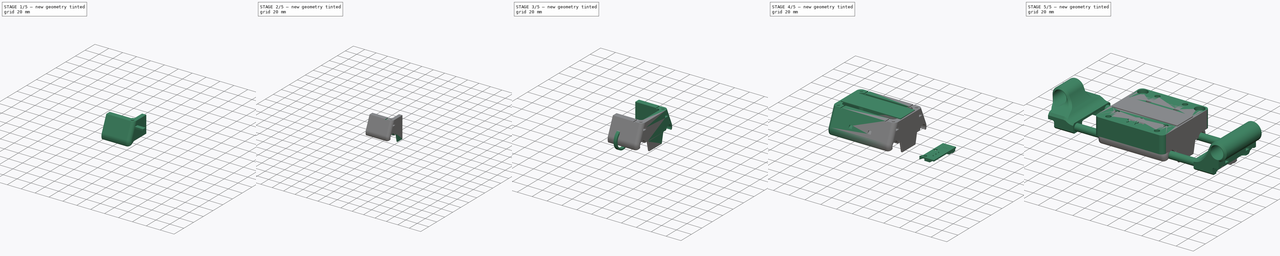
[diagram: build sequence overview — one tinted view per stage of 5, left to right]
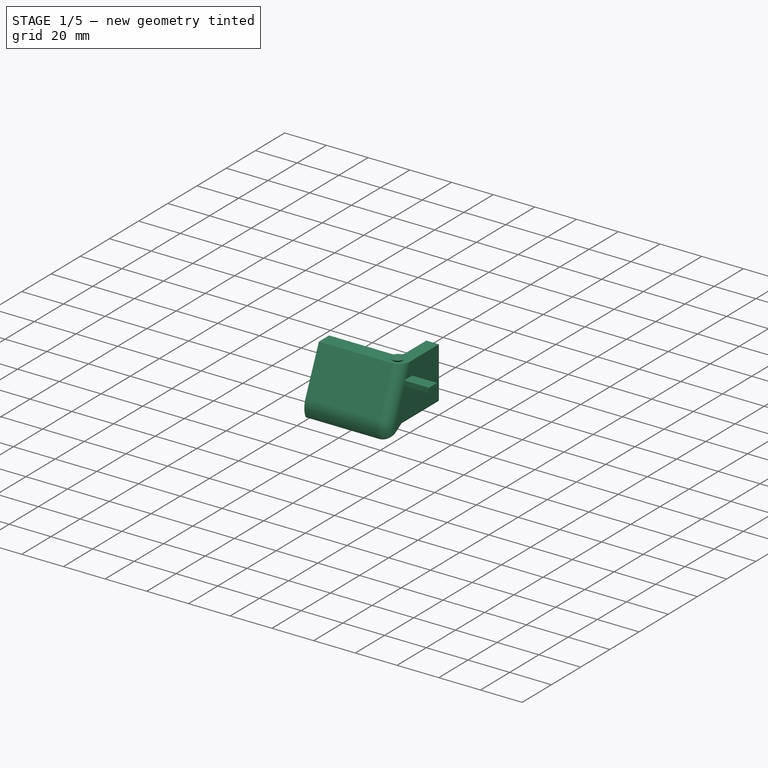
[diagram: stage 1 of 5 — iso view after this stage's code; geometry added in this stage tinted green]
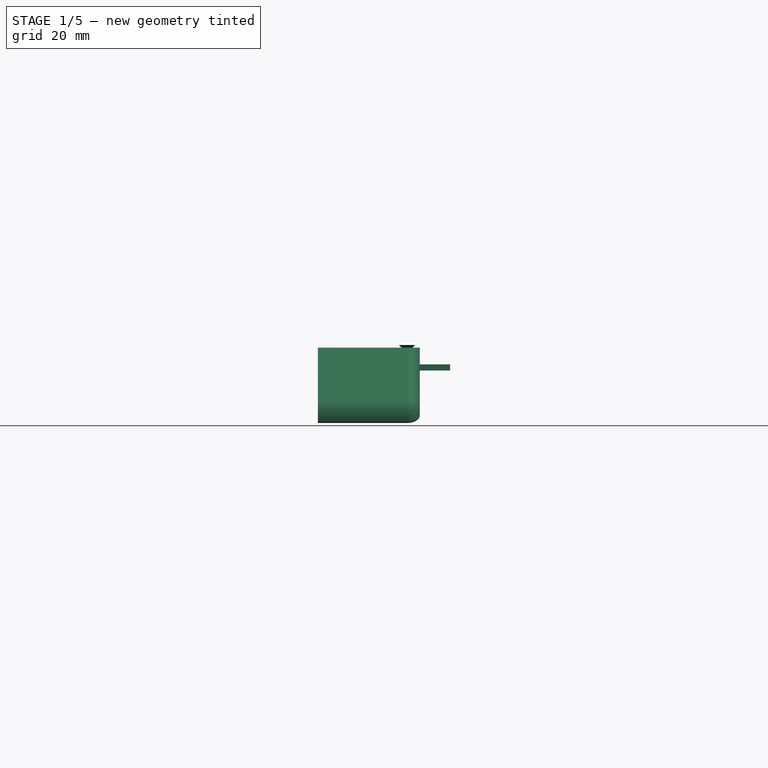
[diagram: stage 1 of 5 — front view after this stage's code; geometry added in this stage tinted green]
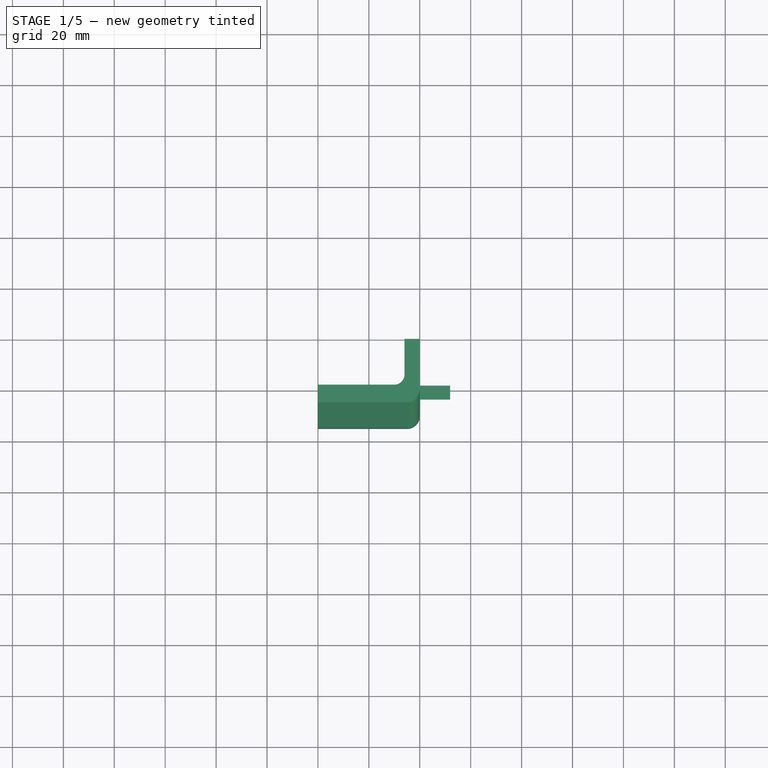
[diagram: stage 1 of 5 — top view after this stage's code; geometry added in this stage tinted green]
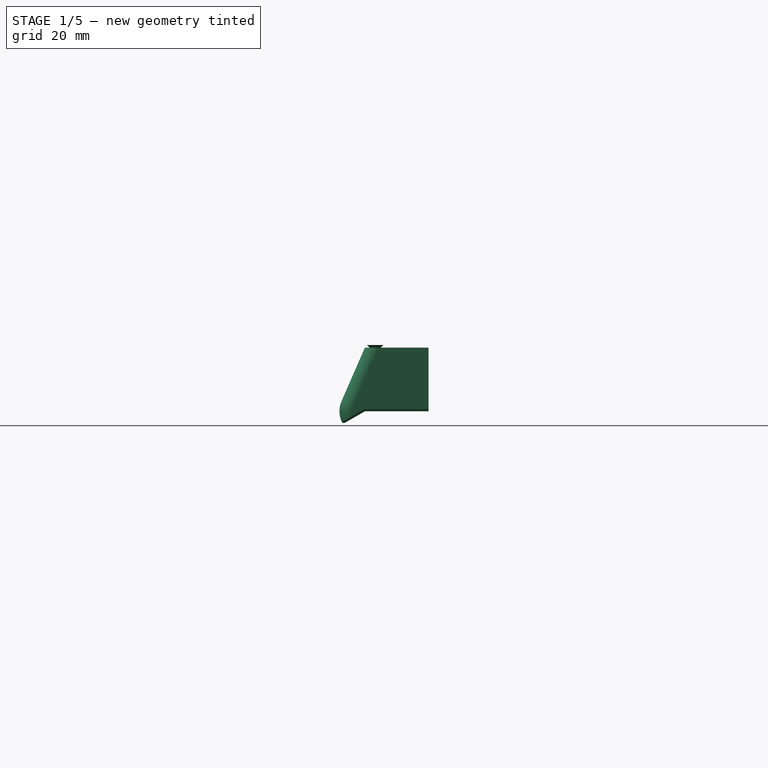
[diagram: stage 1 of 5 — right view after this stage's code; geometry added in this stage tinted green]
FCSTD DOCUMENT  (FreeCAD 0.16R6698 (Git))
Label: Xcarriage
License: All rights reserved
LicenseURL: http://en.wikipedia.org/wiki/All_rights_reserved
objects: Part::FeaturePython×11, Sketcher::SketchObject×10, Part::Fillet×5, PartDesign::Pocket×5, Part::Cut×4, Part::Box×3, Part::MultiFuse×3, PartDesign::Pad×2, PartDesign::Revolution×2, App::DocumentObjectGroup×2, Part::Mirroring×2, Spreadsheet::Sheet×1, Part::Cylinder×1, Part::Offset×1, Part::Compound×1, Part::Feature×1
note: 60 computed .brp shape members not serialized (recipe doc carries the construction recipe); baked Part::Feature solids carry a one-line shape summary decoded from their .brp

FEATURE [Sketcher::SketchObject] Sketch  label="Base"
  Placement = pos=(0,0,0) rot=(0.57735,0.57735,0.57735;2.0944rad)
  sketch-geometry (6):
    g0: LineSegment StartX=0 StartY=0 StartZ=0 EndX=-25 EndY=0 EndZ=0
    g1: LineSegment StartX=-25 StartY=0 StartZ=0 EndX=-34.1651 EndY=-21 EndZ=0
    g2: LineSegment StartX=0 StartY=0 StartZ=0 EndX=0 EndY=-25 EndZ=0
    g3: LineSegment StartX=0 StartY=-25 StartZ=0 EndX=-25 EndY=-25 EndZ=0
    g4: LineSegment StartX=-25 StartY=-25 StartZ=0 EndX=-33.6603 EndY=-30 EndZ=0
    g5: ArcOfCircle CenterX=-25 CenterY=-25 CenterZ=0 NormalX=0 NormalY=0 NormalZ=1 Radius=10 StartAngle=2.73007 EndAngle=3.66519
  constraints (17):
    c: Coincident(g0,g1)
    c: Coincident(g2,g3)
    c: Coincident(g3,g4)
    c: Horizontal(g3)
    c: Horizontal(g0)
    c: Vertical(g2)
    c: Coincident(g2,g-1)
    c: Coincident(g5,g3)
    c: Coincident(g5,g1)
    c: Coincident(g5,g4)
    c: Tangent(g5,g1)
    c: Coincident(g-1,g0)
    c: DistanceX(g3) = -25
    c: DistanceY(g3) = -25
    c: Distance(g4) = 10
    c: DistanceX(g0,g0) = 25
    c: Angle(g4) = -2.61799
FEATURE [PartDesign::Pad] Pad  label="Base001"
  Length = 40
  Length2 = 100
  Placement = pos=(0,0,0) rot=(0.57735,0.57735,0.57735;2.0944rad)
  Sketch = -> Sketch
  Type = 0
FEATURE [Part::Fillet] Fillet
  Base = -> Pad
  Edges = 4 edges: [Edge7 r=5,Edge8 r=1,Edge13 r=1,Edge16 r=1]
FEATURE [Sketcher::SketchObject] Sketch001  label="SamplePocket"
  Support = -> Fillet [Face1]
  sketch-geometry (4):
    g0: LineSegment StartX=0 StartY=-18 StartZ=0 EndX=34 EndY=-18 EndZ=0
    g1: LineSegment StartX=34 StartY=-18 StartZ=0 EndX=34 EndY=0 EndZ=0
    g2: LineSegment StartX=34 StartY=0 StartZ=0 EndX=0 EndY=0 EndZ=0
    g3: LineSegment StartX=0 StartY=0 StartZ=0 EndX=0 EndY=-18 EndZ=0
  constraints (11):
    c: Coincident(g1,g2)
    c: Coincident(g2,g3)
    c: Coincident(g3,g0)
    c: Horizontal(g0)
    c: Horizontal(g2)
    c: Vertical(g1)
    c: Vertical(g3)
    c: Coincident(g2,g-1)
    c: DistanceY(g3,g3) = 18
    c: DistanceX(g2,g2) = 34
    c: Coincident(g0,g1)
FEATURE [PartDesign::Pocket] Pocket  label="SamplePocket001"
  Length = 5
  Sketch = -> Sketch001
  Type = 1
FEATURE [Sketcher::SketchObject] Sketch006  label="StringPath"
  Placement = pos=(0,0,-24) rot=(0,0,1;0rad)
  sketch-geometry (17):
    g0: ArcOfCircle CenterX=-110 CenterY=90 CenterZ=0 NormalX=0 NormalY=0 NormalZ=1 Radius=8 StartAngle=6.28319 EndAngle=9.42478
    g1: ArcOfCircle CenterX=110 CenterY=90 CenterZ=0 NormalX=0 NormalY=0 NormalZ=1 Radius=8 StartAngle=6.28319 EndAngle=9.42478
    g2: ArcOfCircle CenterX=110 CenterY=-82 CenterZ=0 NormalX=0 NormalY=0 NormalZ=1 Radius=8 StartAngle=3.14159 EndAngle=6.28319
    g3: ArcOfCircle CenterX=97 CenterY=-22 CenterZ=0 NormalX=0 NormalY=0 NormalZ=1 Radius=5 StartAngle=6.44789e-07 EndAngle=1.5708
    g4: ArcOfCircle CenterX=97 CenterY=22 CenterZ=0 NormalX=0 NormalY=0 NormalZ=1 Radius=5 StartAngle=4.71239 EndAngle=6.28318
    g5: ArcOfCircle CenterX=-97 CenterY=22 CenterZ=0 NormalX=0 NormalY=0 NormalZ=1 Radius=5 StartAngle=3.14159 EndAngle=4.71239
    g6: ArcOfCircle CenterX=-97 CenterY=-22 CenterZ=0 NormalX=0 NormalY=0 NormalZ=1 Radius=5 StartAngle=1.57079 EndAngle=3.14159
    g7: ArcOfCircle CenterX=-110 CenterY=-82 CenterZ=0 NormalX=0 NormalY=0 NormalZ=1 Radius=8 StartAngle=3.14159 EndAngle=6.28319
    g8: LineSegment StartX=-118 StartY=90 StartZ=0 EndX=-118 EndY=-82 EndZ=0
    g9: LineSegment StartX=-102 StartY=-22 StartZ=0 EndX=-102 EndY=-82 EndZ=0
    g10: LineSegment StartX=-97 StartY=-17 StartZ=0 EndX=97 EndY=-17 EndZ=0
    g11: LineSegment StartX=-102 StartY=90 StartZ=0 EndX=-102 EndY=22 EndZ=0
    g12: LineSegment StartX=102 StartY=90 StartZ=0 EndX=102 EndY=22 EndZ=0
    g13: LineSegment StartX=118 StartY=90 StartZ=0 EndX=118 EndY=-82 EndZ=0
    g14: LineSegment StartX=102 StartY=-82 StartZ=0 EndX=102 EndY=-22 EndZ=0
    g15: LineSegment StartX=-97 StartY=17 StartZ=0 EndX=-20.947 EndY=17 EndZ=0
    g16: LineSegment StartX=14.5397 StartY=17 StartZ=0 EndX=97 EndY=17 EndZ=0
  constraints (49):
    c: Equal(g0,g1)
    c: Symmetric(g0,g1,g-2)
    c: Symmetric(g2,g7,g-2)
    c: Equal(g7,g2)
    c: Symmetric(g6,g3,g-2)
    c: Symmetric(g5,g4,g-2)
    c: DistanceX(g2) = 110
    c: DistanceX(g1) = 110
    c: DistanceY(g1) = 90
    c: DistanceY(g2) = -82
    c: Coincident(g13,g1)
    c: Coincident(g13,g2)
    c: Coincident(g14,g2)
    c: Coincident(g14,g3)
    c: Coincident(g3,g10)
    c: Coincident(g4,g12)
    c: Coincident(g6,g10)
    c: Coincident(g6,g9)
    c: Coincident(g7,g9)
    c: Coincident(g7,g8)
    c: Coincident(g8,g0)
    c: Coincident(g11,g0)
    c: Coincident(g12,g1)
    c: Coincident(g5,g11)
    c: Coincident(g16,g4)
    c: Coincident(g15,g5)
    c: Vertical(g8)
    c: Vertical(g13)
    c: Vertical(g12)
    c: Vertical(g11)
    c: Vertical(g9)
    c: Vertical(g14)
    c: Horizontal(g10)
    c: Horizontal(g15)
    c: Horizontal(g16)
    c: PointOnObject(g15,g16)
    c: Tangent(g5,g15)
    c: Tangent(g11,g0)
    c: Tangent(g9,g7)
    c: Tangent(g9,g6)
    c: Tangent(g10,g3)
    c: Tangent(g16,g4)
    c: Radius(g0) = 8
    c: Symmetric(g5,g6,g-1)
    c: Equal(g6,g5)
    c: Tangent(g1,g13)
    c: Tangent(g8,g0)
    c: Radius(g4) = 5
    c: DistanceY(g3,g4) = 34
FEATURE [App::DocumentObjectGroup] Group  label="Reference"
  Group = -> [Clone011,Clone012,Clone007,Clone004,Clone006,Clone016,Clone017,Clone003,Box001,Compound002,Sketch006,Box002]
FEATURE [Sketcher::SketchObject] Sketch007  label="Countersunk"
  Placement = pos=(0,0,0) rot=(0.57735,0.57735,0.57735;2.0944rad)
  sketch-geometry (5):
    g0: LineSegment StartX=3.2 StartY=0 StartZ=0 EndX=1.5 EndY=-1.7 EndZ=0
    g1: LineSegment StartX=1.5 StartY=-1.7 StartZ=0 EndX=1.5 EndY=-15 EndZ=0
    g2: LineSegment StartX=1.5 StartY=-15 StartZ=0 EndX=0 EndY=-15 EndZ=0
    g3: LineSegment StartX=0 StartY=-15 StartZ=0 EndX=0 EndY=0 EndZ=0
    g4: LineSegment StartX=0 StartY=0 StartZ=0 EndX=3.2 EndY=0 EndZ=0
  constraints (14):
    c: Coincident(g0,g1)
    c: Coincident(g1,g2)
    c: Coincident(g2,g3)
    c: Coincident(g3,g4)
    c: Coincident(g4,g0)
    c: Horizontal(g4)
    c: Horizontal(g2)
    c: Vertical(g3)
    c: Vertical(g1)
    c: Angle(g4,g0) = 0.785398
    c: Coincident(g3,g-1)
    c: DistanceY(g0,g-1) = 1.7
    c: DistanceX(g2,g2) = 1.5
    c: DistanceY(g3,g3) = 15
FEATURE [PartDesign::Revolution] Revolution001  label="Countersunk001"
  Angle = 360
  Axis = (0,0,1)
  Base = (0,0,0)
  Placement = pos=(0,0,0) rot=(0.57735,0.57735,0.57735;2.0944rad)
  ReferenceAxis = -> Sketch007 [V_Axis]
  Reversed = true
  Sketch = -> Sketch007
FEATURE [Part::Box] Box  label="NutSlot"
  Height = 2.4
  Length = 20
  Placement = pos=(-3.1,-2.75,-10) rot=(0,0,1;0rad)
  Width = 5.5
FEATURE [Part::MultiFuse] Fusion  label="CounterSunkCut"
  Shapes = -> [Revolution001,Box]
FEATURE [App::DocumentObjectGroup] Group001  label="BoltsSrc"
  Group = -> [Fusion]
FEATURE [Part::FeaturePython] Clone019  label="Clone of CounterSunkCut"  # Draft clone (typed FeaturePython)
  Objects = -> [Fusion]
  Placement = pos=(35,-21,1) rot=(0,0,1;0rad)
  Scale = (1,1,1)
FEATURE [Part::Fillet] Fillet002  label="WindowFillet"
  Base = -> Pocket
  Edges = 1 edges r=4: [Edge19]
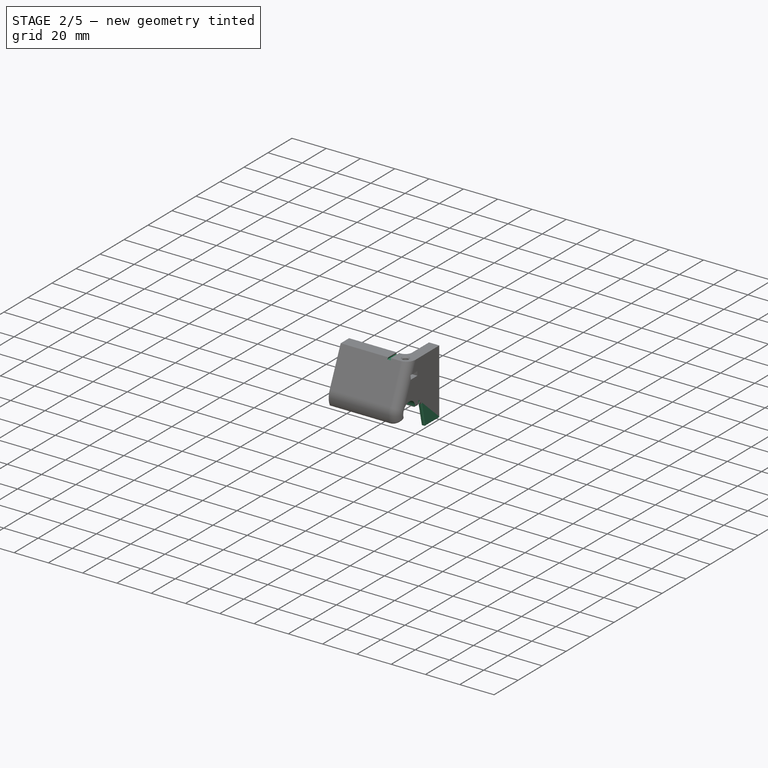
[diagram: stage 2 of 5 — iso view after this stage's code; geometry added in this stage tinted green]
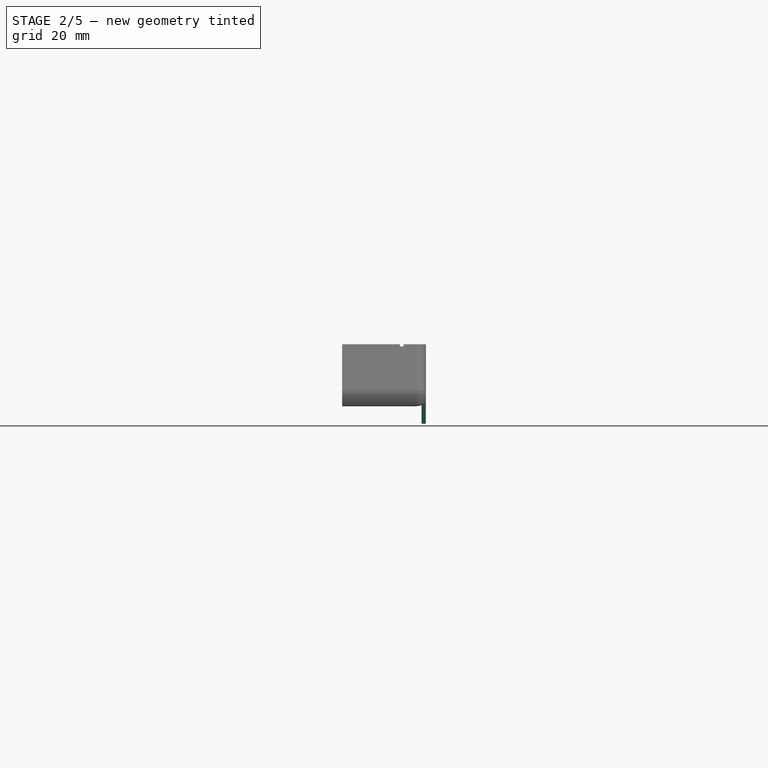
[diagram: stage 2 of 5 — front view after this stage's code; geometry added in this stage tinted green]
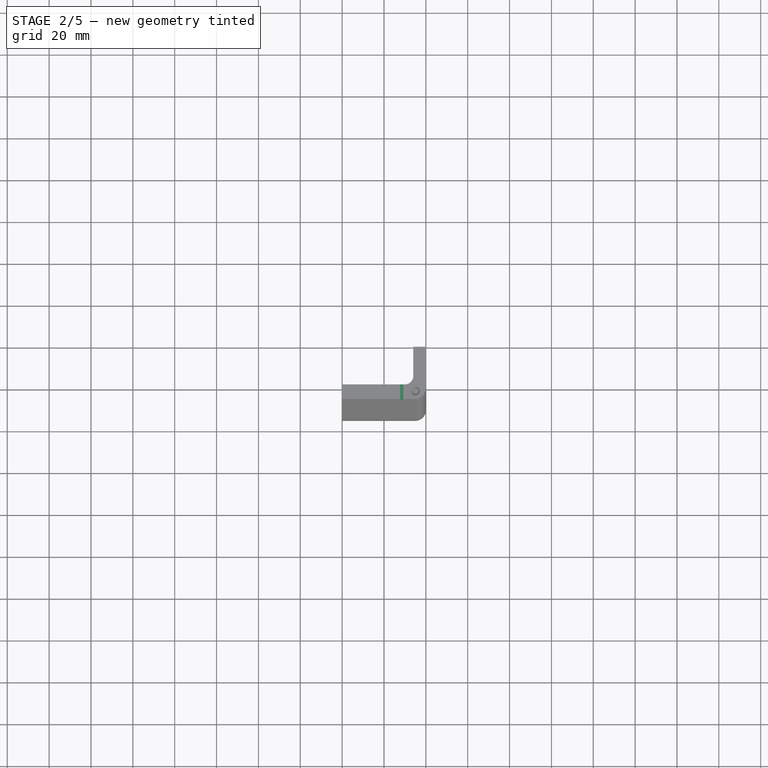
[diagram: stage 2 of 5 — top view after this stage's code; geometry added in this stage tinted green]
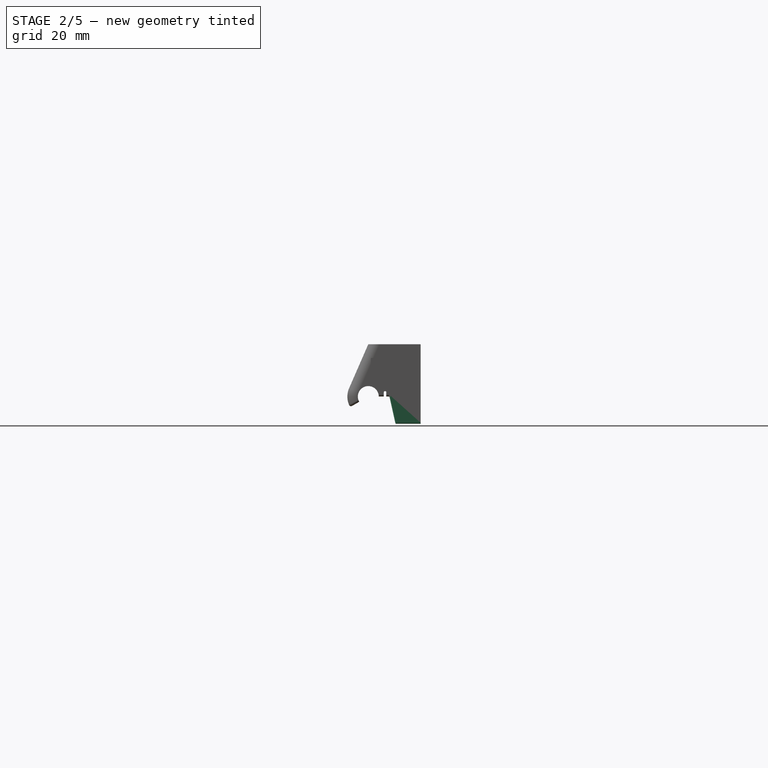
[diagram: stage 2 of 5 — right view after this stage's code; geometry added in this stage tinted green]
FEATURE [Spreadsheet::Sheet] Spreadsheet  label="Parameters"
  cells = A1=Rod Clearance; B1(RodClear)=1; A2=Bolt Clearance; B2(BoltClear)=0; A3=Window X; B3(WindowX)=34; A4=Window Y; B4(WindowY)=18; A5=Bearing Linear Clearance; B5(BeLinClear)=0; A6=Bearing Radius Clearance; B6(BeRaClear)=0; A7=Tie width; B7(TieW)=4; A8=Tie Thickness; B8(TieThick)=2
FEATURE [Part::Cylinder] Cylinder  label="SmRod"
  Angle = 360
  Height = 50
  Placement = pos=(-1,-25,-25) rot=(0,1,0;1.5708rad)
  Radius = 4
FEATURE [Part::Offset] Offset  label="RodClearance"
  Fill = false
  Intersection = false
  Join = 0
  Mode = 0
  SelfIntersection = false
  Source = -> Cylinder
  Value = 1
  expr: Value = Parameters.RodClear
FEATURE [Part::Cut] Cut  label="SmRodCut"
  Base = -> Fillet002
  Tool = -> Offset
FEATURE [Part::Cut] Cut001  label="Countersunk002"
  Base = -> Cut
  Tool = -> Clone019
FEATURE [Sketcher::SketchObject] Sketch005  label="EndstopHit"
  Placement = pos=(40,0,0) rot=(0.57735,0.57735,0.57735;2.0944rad)
  Support = -> Cut001 [Face6]
  sketch-geometry (4):
    g0: LineSegment StartX=-16.2274 StartY=-18.9314 StartZ=0 EndX=0 EndY=-18.9314 EndZ=0
    g1: LineSegment StartX=0 StartY=-18.9314 StartZ=0 EndX=0 EndY=-38 EndZ=0
    g2: LineSegment StartX=0 StartY=-38 StartZ=0 EndX=-12 EndY=-38 EndZ=0
    g3: LineSegment StartX=-12 StartY=-38 StartZ=0 EndX=-16.2274 EndY=-18.9314 EndZ=0
  constraints (11):
    c: Coincident(g0,g1)
    c: Coincident(g1,g2)
    c: Coincident(g2,g3)
    c: Coincident(g3,g0)
    c: Horizontal(g0)
    c: Horizontal(g2)
    c: DistanceX(g2,g2) = 12
    c: DistanceY(g1) = -38
    c: Angle(g1,g3) = 0.218166
    c: PointOnObject(g0,g-2)
    c: Vertical(g1)
FEATURE [PartDesign::Pad] Pad001  label="EndstopHit001"
  Length = 2
  Length2 = 100
  Reversed = true
  Sketch = -> Sketch005
  Type = 0
FEATURE [Part::Fillet] Fillet001  label="EndstopFillet"
  Base = -> Pad001
  Edges = 8 edges r=0.5: [Edge2,Edge3,Edge4,Edge5,Edge6,Edge7,Edge8,Edge9]
FEATURE [Sketcher::SketchObject] Sketch008  label="StringChannel"
  Placement = pos=(40,0,0) rot=(0.57735,0.57735,0.57735;2.0944rad)
  Support = -> Fillet001 [Face6]
  sketch-geometry (4):
    g0: ArcOfCircle CenterX=-17 CenterY=-23 CenterZ=0 NormalX=0 NormalY=0 NormalZ=1 Radius=0.6 StartAngle=6.28318 EndAngle=9.42478
    g1: LineSegment StartX=-17.6 StartY=-23 StartZ=0 EndX=-17.6 EndY=-28.4599 EndZ=0
    g2: LineSegment StartX=-17.6 StartY=-28.4599 StartZ=0 EndX=-16.4 EndY=-28.4599 EndZ=0
    g3: LineSegment StartX=-16.4 StartY=-28.4599 StartZ=0 EndX=-16.4 EndY=-23 EndZ=0
  constraints (12):
    c: Coincident(g1,g2)
    c: Coincident(g2,g3)
    c: Vertical(g3)
    c: Vertical(g1)
    c: Horizontal(g2)
    c: Coincident(g1,g0)
    c: Coincident(g3,g0)
    c: Tangent(g1,g0)
    c: Tangent(g3,g0)
    c: DistanceX(g0) = -17
    c: DistanceY(g0) = -23
    c: Radius(g0) = 0.6
FEATURE [PartDesign::Pocket] Pocket001  label="StringChannel001"
  Length = 9
  Sketch = -> Sketch008
  Type = 0
FEATURE [Sketcher::SketchObject] Sketch009  label="StringFix"
  Placement = pos=(0,-18,0) rot=(0,0.707107,0.707107;3.14159rad)
  Support = -> Pocket001 [Face29]
  sketch-geometry (5):
    g0: LineSegment StartX=-29.0777 StartY=0.905024 StartZ=0 EndX=-27.9223 EndY=0.905024 EndZ=0
    g1: LineSegment StartX=-27.9223 StartY=0.905024 StartZ=0 EndX=-27.5 EndY=-1 EndZ=0
    g2: LineSegment StartX=-27.5 StartY=-1 StartZ=0 EndX=-29.5 EndY=-1 EndZ=0
    g3: LineSegment StartX=-29.5 StartY=-1 StartZ=0 EndX=-29.0777 EndY=0.905024 EndZ=0
    g4: LineSegment [constr] StartX=-28.5 StartY=0.905024 StartZ=0 EndX=-28.5 EndY=-1 EndZ=0
  constraints (15):
    c: Coincident(g0,g1)
    c: Coincident(g1,g2)
    c: Coincident(g2,g3)
    c: Coincident(g3,g0)
    c: PointOnObject(g4,g0)
    c: PointOnObject(g4,g2)
    c: Vertical(g4)
    c: Horizontal(g0)
    c: Horizontal(g2)
    c: Symmetric(g0,g0,g4)
    c: Symmetric(g1,g2,g4)
    c: Angle(g1,g3) = -0.436332
    c: DistanceY(g4) = -1
    c: DistanceX(g2,g2) = 2
    c: DistanceX(g4) = -28.5
FEATURE [PartDesign::Pocket] Pocket004  label="StringFix001"
  Length = 5
  Sketch = -> Sketch009
  Type = 1
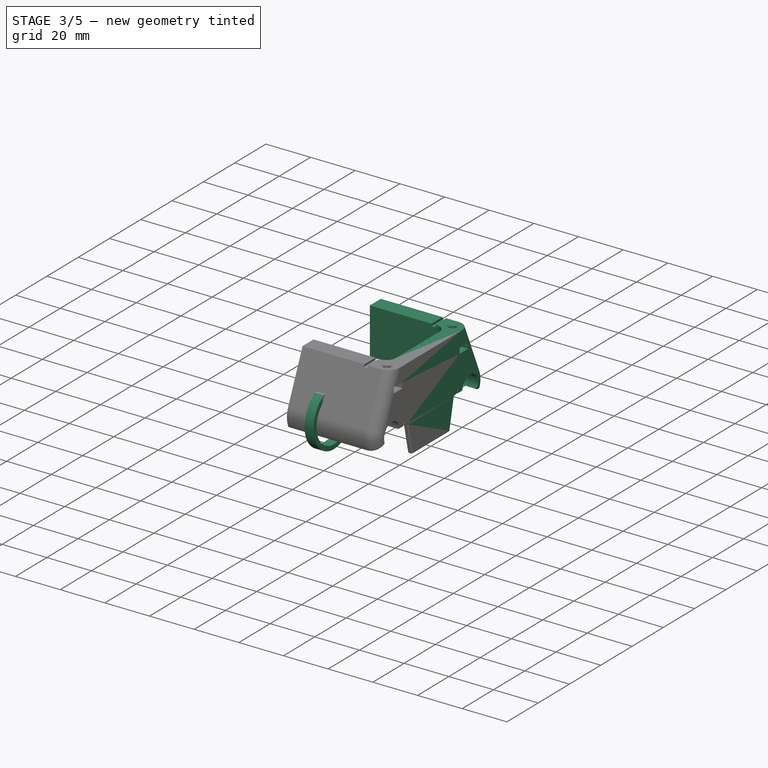
[diagram: stage 3 of 5 — iso view after this stage's code; geometry added in this stage tinted green]
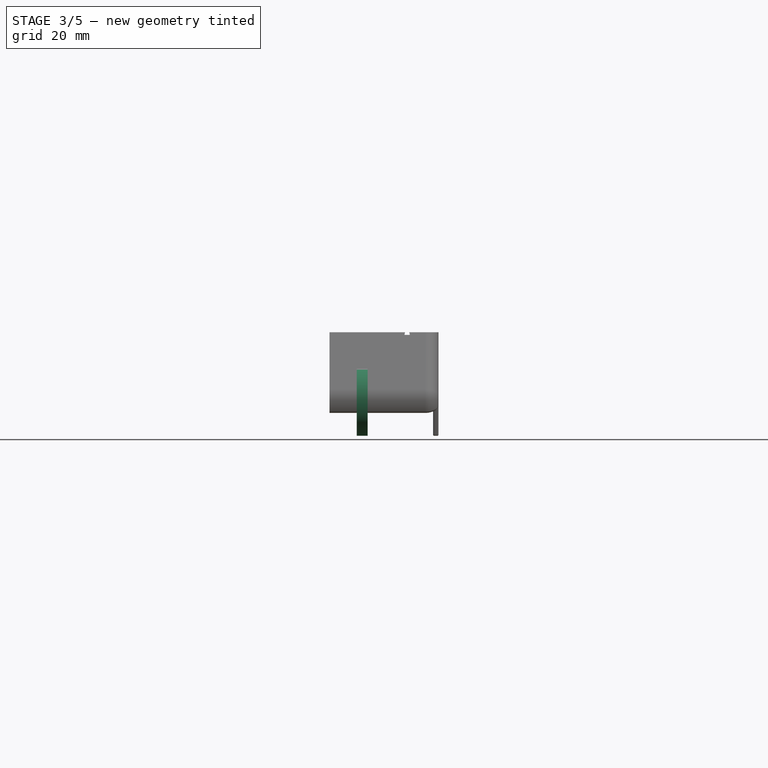
[diagram: stage 3 of 5 — front view after this stage's code; geometry added in this stage tinted green]
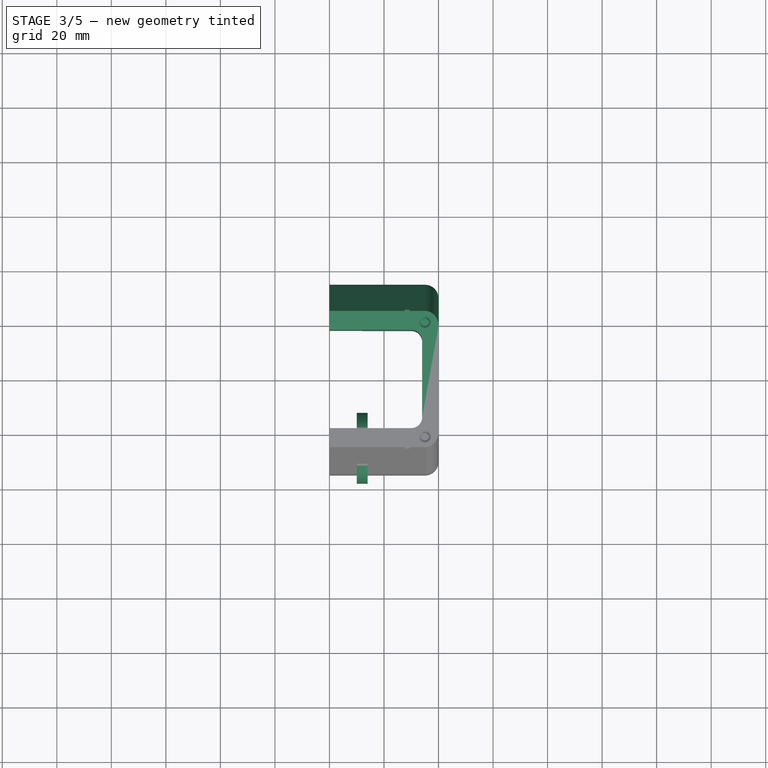
[diagram: stage 3 of 5 — top view after this stage's code; geometry added in this stage tinted green]
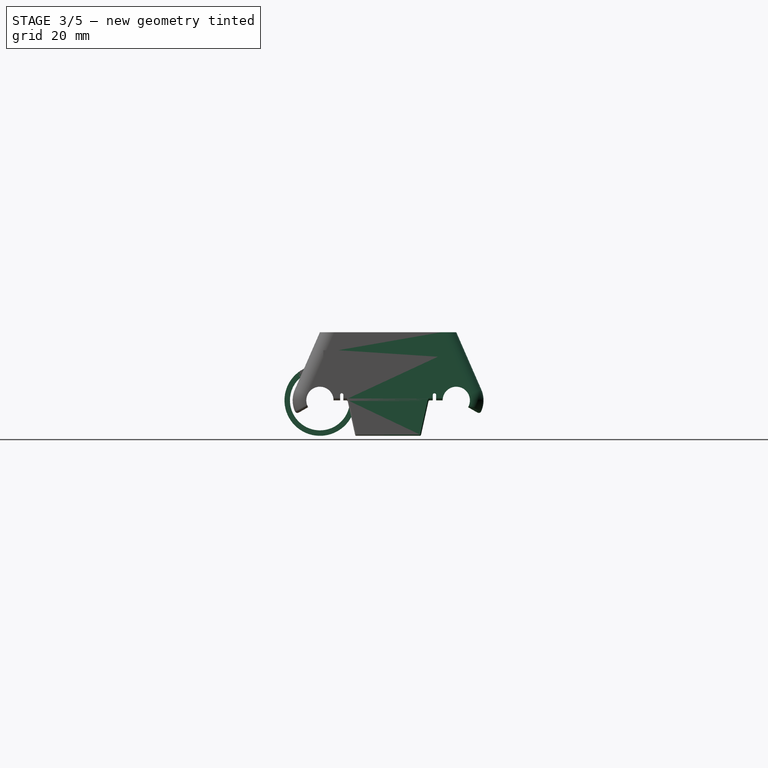
[diagram: stage 3 of 5 — right view after this stage's code; geometry added in this stage tinted green]
FEATURE [Sketcher::SketchObject] Sketch002  label="BearingCavity"
  expr: Constraints[24] = Parameters.TieW
  expr: Constraints[23] = Parameters.TieThick
  expr: Constraints[11] = 7.5 + Parameters.BeRaClear
  expr: Constraints[10] = 24 + Spreadsheet.BeLinClear
  sketch-geometry (9):
    g0: LineSegment [constr] StartX=-12 StartY=7.5 StartZ=0 EndX=12 EndY=7.5 EndZ=0
    g1: LineSegment [constr] StartX=12 StartY=7.5 StartZ=0 EndX=12 EndY=0 EndZ=0
    g2: LineSegment [constr] StartX=12 StartY=0 StartZ=0 EndX=-12 EndY=0 EndZ=0
    g3: LineSegment [constr] StartX=-12 StartY=0 StartZ=0 EndX=-12 EndY=7.5 EndZ=0
    g4: LineSegment StartX=-2 StartY=11 StartZ=0 EndX=2 EndY=11 EndZ=0
    g5: LineSegment StartX=2 StartY=11 StartZ=0 EndX=2 EndY=13 EndZ=0
    g6: LineSegment StartX=2 StartY=13 StartZ=0 EndX=-2 EndY=13 EndZ=0
    g7: LineSegment StartX=-2 StartY=13 StartZ=0 EndX=-2 EndY=11 EndZ=0
    g8: GeomPoint [constr] X=0 Y=12 Z=0
  constraints (25):
    c: Coincident(g0,g1)
    c: Coincident(g1,g2)
    c: Coincident(g2,g3)
    c: Coincident(g3,g0)
    c: Horizontal(g0)
    c: Horizontal(g2)
    c: Vertical(g1)
    c: Vertical(g3)
    c: PointOnObject(g2,g-1)
    c: Symmetric(g2,g1,g-2)
    c: DistanceX(g0,g0) = 24
    c: DistanceY(g3,g3) = 7.5
    c: Coincident(g4,g5)
    c: Coincident(g5,g6)
    c: Coincident(g6,g7)
    c: Coincident(g7,g4)
    c: Horizontal(g4)
    c: Horizontal(g6)
    c: Vertical(g5)
    c: Vertical(g7)
    c: Symmetric(g4,g5,g8)
    c: PointOnObject(g8,g-2)
    c: DistanceY(g-1,g8) = 12
    c: DistanceY(g5,g5) = 2
    c: DistanceX(g4,g4) = 4
FEATURE [PartDesign::Revolution] Revolution  label="TiePocket"
  Angle = 360
  Axis = (1,0,0)
  Base = (0,0,0)
  ReferenceAxis = -> Sketch002 [H_Axis]
  Sketch = -> Sketch002
FEATURE [Part::FeaturePython] Clone018  label="BackTies"  # Draft clone (typed FeaturePython)
  Objects = -> [Revolution]
  Placement = pos=(12,-25,-25) rot=(0,0,1;0rad)
  Scale = (1,1,1)
FEATURE [Part::Mirroring] Part__Mirroring002  label="StringFix001 (Mirror #3)"
  Base = (0,0,0)
  Normal = (0,1,0)
  Source = -> Pocket004
FEATURE [Part::MultiFuse] Fusion003  label="FrontMirror"
  Shapes = -> [Pocket004,Part__Mirroring002]
FEATURE [Sketcher::SketchObject] Sketch004  label="FrontBearing"
  Placement = pos=(0,0,0) rot=(0.57735,-0.57735,-0.57735;2.0944rad)
  Support = -> Fusion003 [Face75]
  expr: Constraints[2] = 7.5 + Parameters.BeRaClear
  sketch-geometry (1):
    g0: Circle CenterX=-25 CenterY=-25 CenterZ=0 NormalX=0 NormalY=0 NormalZ=1 Radius=7.5
  constraints (3):
    c: DistanceX(g0) = -25
    c: DistanceY(g0) = -25
    c: Radius(g0) = 7.5
FEATURE [PartDesign::Pocket] Pocket002  label="FrontBearing001"
  Length = 12
  Sketch = -> Sketch004
  Type = 0
  expr: Length = 12 + Parameters.BeLinClear
FEATURE [Part::Fillet] Fillet003  label="AntiCreaseFillet"
  Base = -> Pocket002
  Edges = 1 edges r=0.5: [Edge167]
FEATURE [Sketcher::SketchObject] Sketch003  label="BackBearing"
  Placement = pos=(0,0,0) rot=(0.57735,-0.57735,-0.57735;2.0944rad)
  Support = -> Fillet003 [Face49]
  expr: Constraints[2] = 7.5 + Parameters.BeRaClear
  sketch-geometry (1):
    g0: Circle CenterX=25 CenterY=-25 CenterZ=0 NormalX=0 NormalY=0 NormalZ=1 Radius=7.5
  constraints (3):
    c: DistanceX(g0) = 25
    c: DistanceY(g0) = -25
    c: Radius(g0) = 7.5
FEATURE [PartDesign::Pocket] Pocket003  label="BackBearings"
  Length = 24
  Sketch = -> Sketch003
  Type = 0
  expr: Length = 24 + Parameters.BeLinClear
FEATURE [Part::Fillet] Fillet004  label="AntiCreaseFillet001"
  Base = -> Pocket003
  Edges = 1 edges r=0.5: [Edge97]
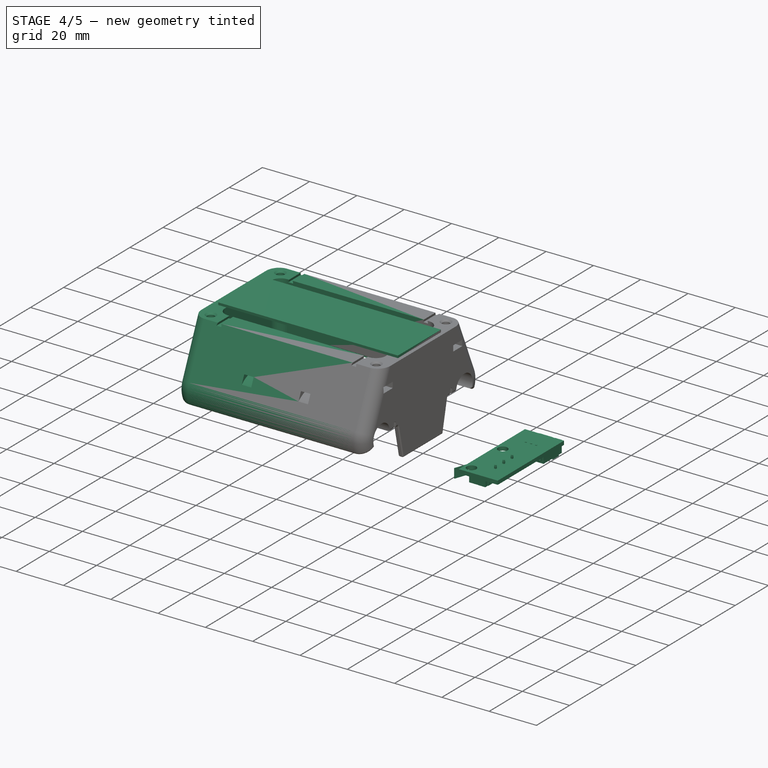
[diagram: stage 4 of 5 — iso view after this stage's code; geometry added in this stage tinted green]
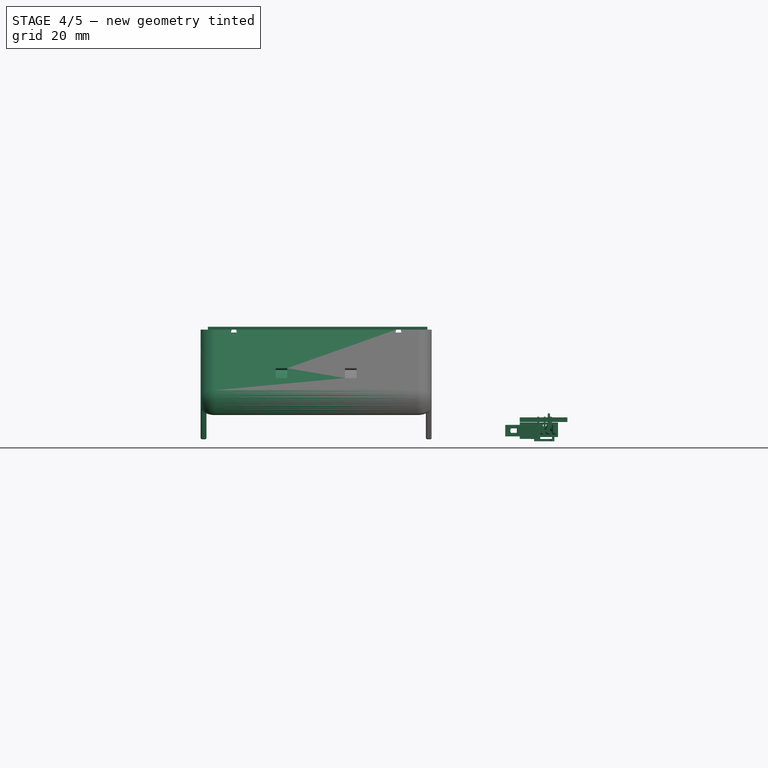
[diagram: stage 4 of 5 — front view after this stage's code; geometry added in this stage tinted green]
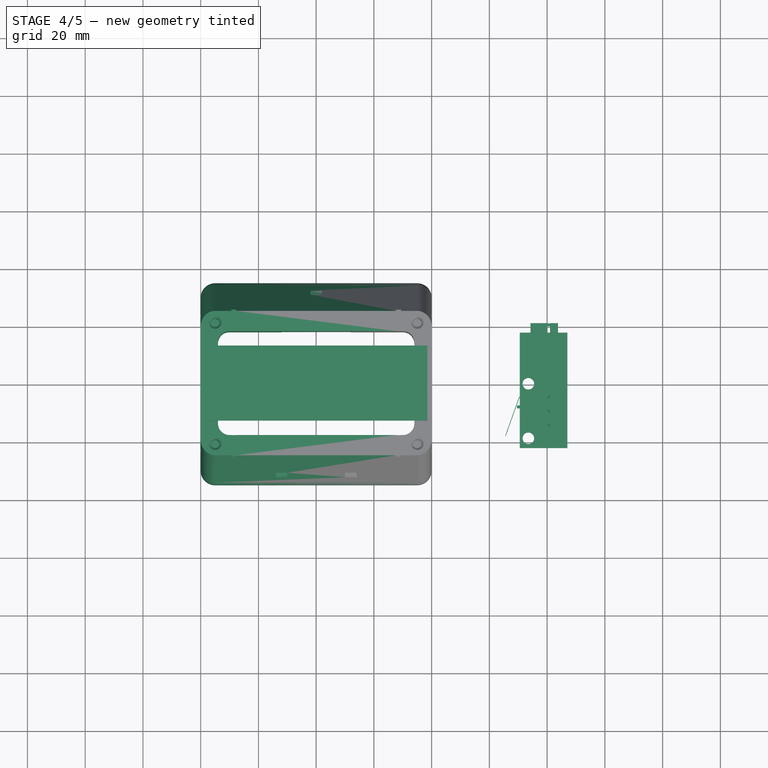
[diagram: stage 4 of 5 — top view after this stage's code; geometry added in this stage tinted green]
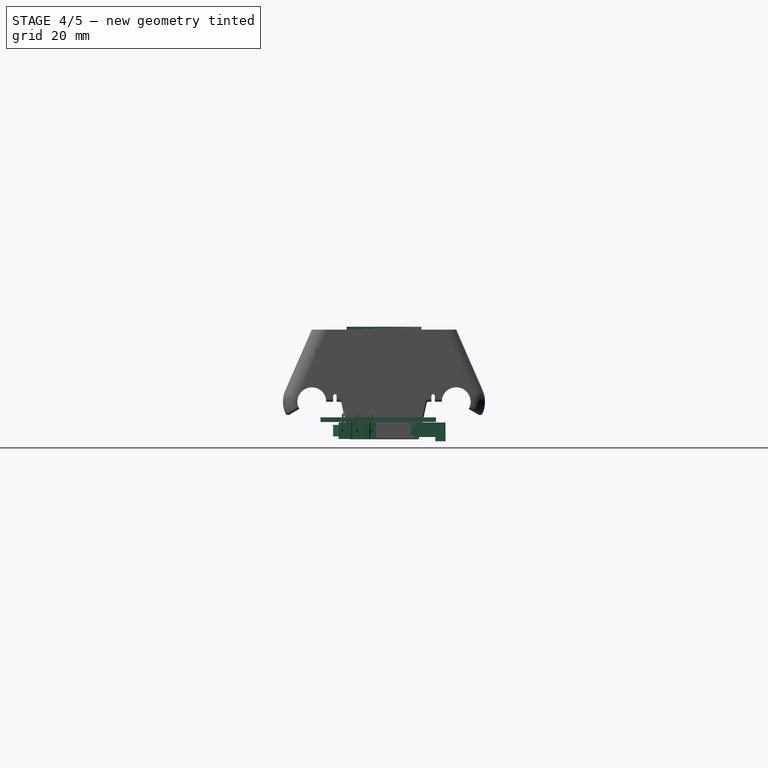
[diagram: stage 4 of 5 — right view after this stage's code; geometry added in this stage tinted green]
FEATURE [Part::Box] Box001  label="SampleMaster"
  Height = 1
  Length = 26
  Placement = pos=(38.5,-13,0) rot=(0,0,1;1.5708rad)
  Width = 76
FEATURE [Part::FeaturePython] Clone  label="FrontTie"  # Draft clone (typed FeaturePython)
  Objects = -> [Revolution]
  Placement = pos=(0,25,-25) rot=(0,0,1;0rad)
  Scale = (1,1,1)
FEATURE [Part::Compound] Compound002  label="xEndstop"
  Placement = pos=(87,18,-32) rot=(0,-1,0;1.5708rad)
FEATURE [Part::Box] Box002  label="SampleMaster001"
  Height = 1
  Length = 26
  Placement = pos=(38.5,-13,0) rot=(0,0,1;1.5708rad)
  Width = 76
FEATURE [Part::Cut] Cut002  label="BackTies001"
  Base = -> Fillet004
  Tool = -> Clone018
FEATURE [Part::Cut] Cut003  label="FrontTies"
  Base = -> Cut002
  Tool = -> Clone
FEATURE [Part::Mirroring] Part__Mirroring001  label="FrontTies (Mirror #2)"
  Base = (0,0,0)
  Normal = (1,0,0)
  Source = -> Cut003
FEATURE [Part::MultiFuse] Fusion002  label="SideMirror"
  Shapes = -> [Cut003,Part__Mirroring001]
FEATURE [Part::Feature] Fusion002001  label="XCarriage"
  shape: bbox 81.03 x 70.18 x 40.02 mm, 182 faces (baked)
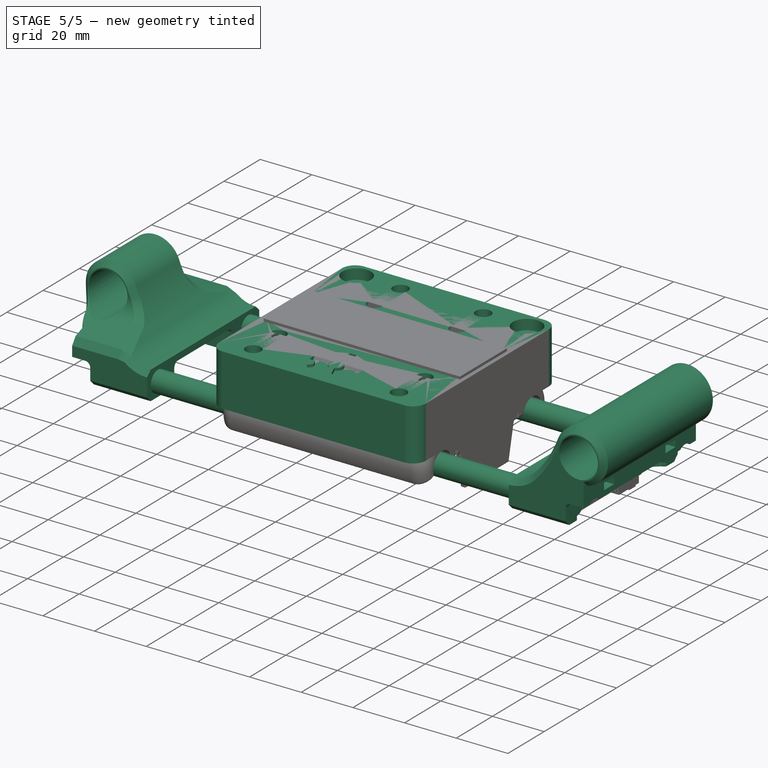
[diagram: stage 5 of 5 — iso view after this stage's code; geometry added in this stage tinted green]
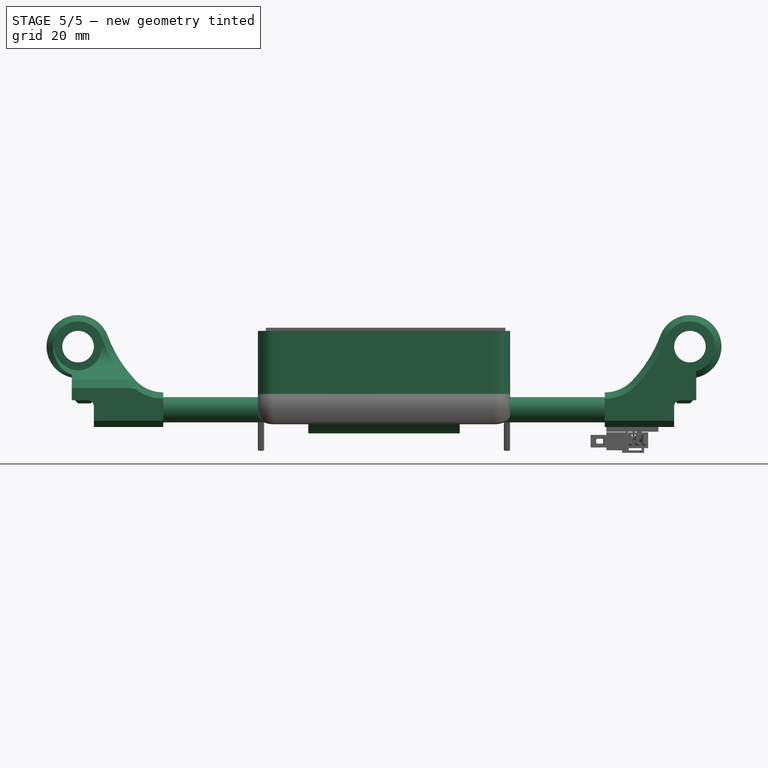
[diagram: stage 5 of 5 — front view after this stage's code; geometry added in this stage tinted green]
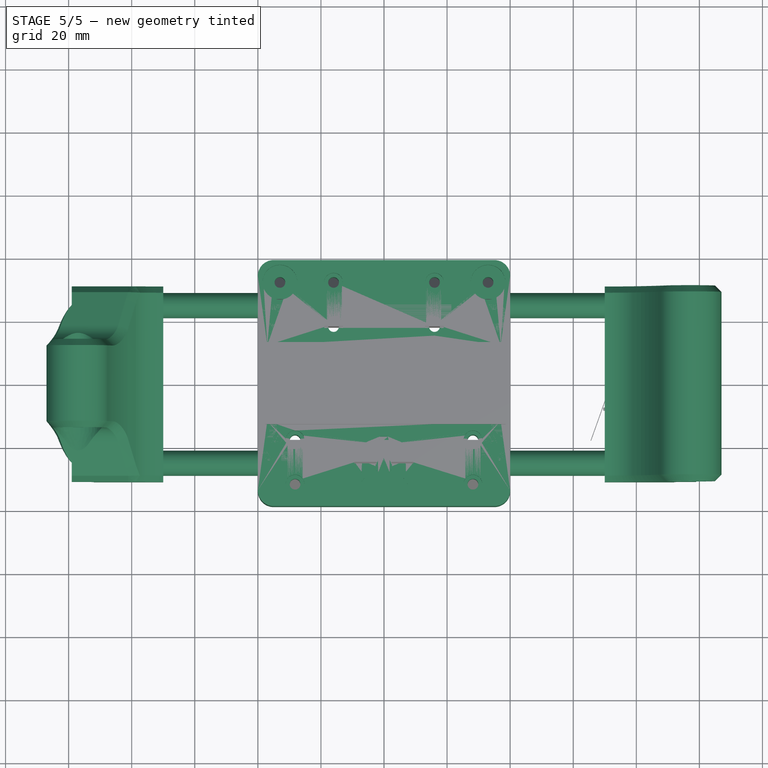
[diagram: stage 5 of 5 — top view after this stage's code; geometry added in this stage tinted green]
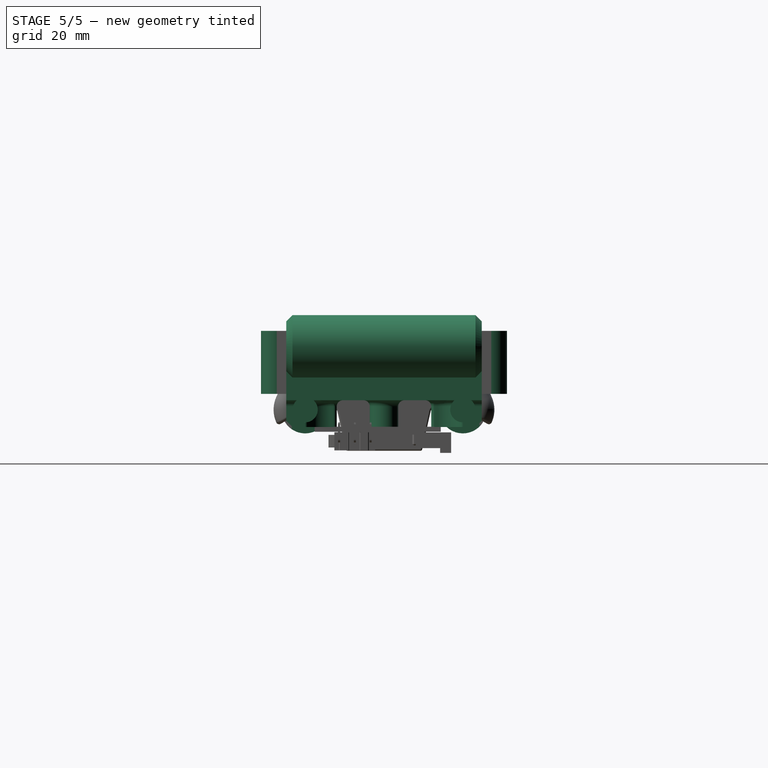
[diagram: stage 5 of 5 — right view after this stage's code; geometry added in this stage tinted green]
FEATURE [Part::FeaturePython] Clone011  label="Clone of LYcarriage"  # WARN: FeaturePython — macro-defined, semantics opaque (R4)
  Placement = pos=(70,0,-25) rot=(0,0,1;0rad)
  Scale = (1,1,1)
FEATURE [Part::FeaturePython] Clone012  label="Clone of RYcarriage"  # WARN: FeaturePython — macro-defined, semantics opaque (R4)
  Placement = pos=(-70,0,-25) rot=(0,0,1;0rad)
  Scale = (1,1,1)
FEATURE [Part::FeaturePython] Clone007  label="Clone of LM8UU"  # WARN: FeaturePython — macro-defined, semantics opaque (R4)
  Placement = pos=(-24,-25,-25) rot=(0,1,0;1.5708rad)
  Scale = (1,1,1)
FEATURE [Part::FeaturePython] Clone004  label="Clone of LM8UU002"  # WARN: FeaturePython — macro-defined, semantics opaque (R4)
  Placement = pos=(0,-25,-25) rot=(0,1,0;1.5708rad)
  Scale = (1,1,1)
FEATURE [Part::FeaturePython] Clone006  label="Clone of LM8UU003"  # WARN: FeaturePython — macro-defined, semantics opaque (R4)
  Placement = pos=(-12,25,-25) rot=(0,1,0;1.5708rad)
  Scale = (1,1,1)
FEATURE [Part::FeaturePython] Clone016  label="Clone of XBar (Mirror #9)"  # WARN: FeaturePython — macro-defined, semantics opaque (R4)
  Placement = pos=(0,0,-35) rot=(0,0,1;0rad)
  Scale = (1,1,1)
FEATURE [Part::FeaturePython] Clone017  label="Clone of XBar"  # WARN: FeaturePython — macro-defined, semantics opaque (R4)
  Placement = pos=(-92,-25,-25) rot=(0,1,0;1.5708rad)
  Scale = (1,1,1)
FEATURE [Part::FeaturePython] Clone003  label="Clone of TopXCarriage"  # WARN: FeaturePython — macro-defined, semantics opaque (R4)
  Placement = pos=(-40,39,-20) rot=(0,0,-1;1.5708rad)
  Scale = (1,1,1)
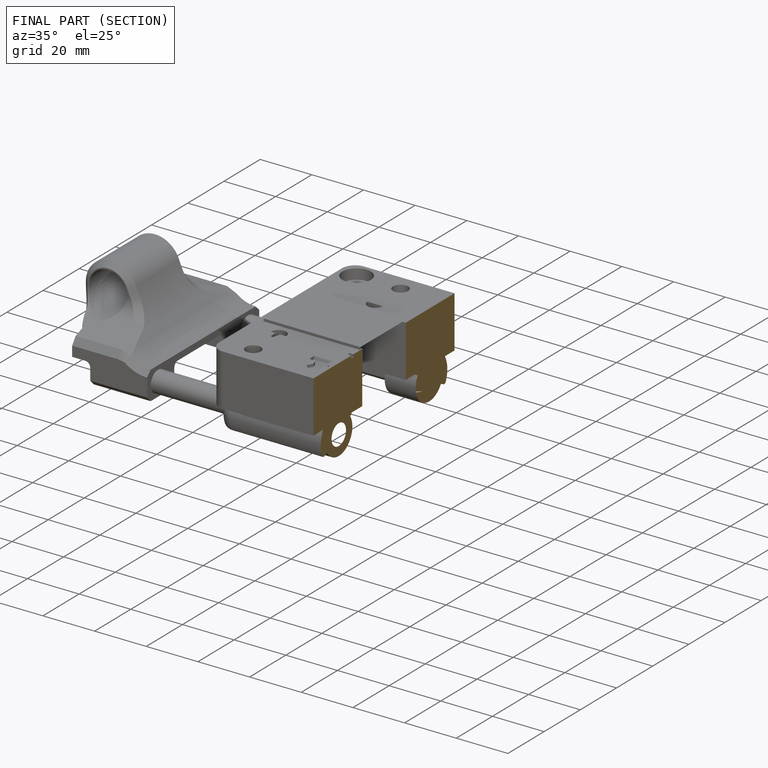
[diagram: finished part — half-section view (interior)]
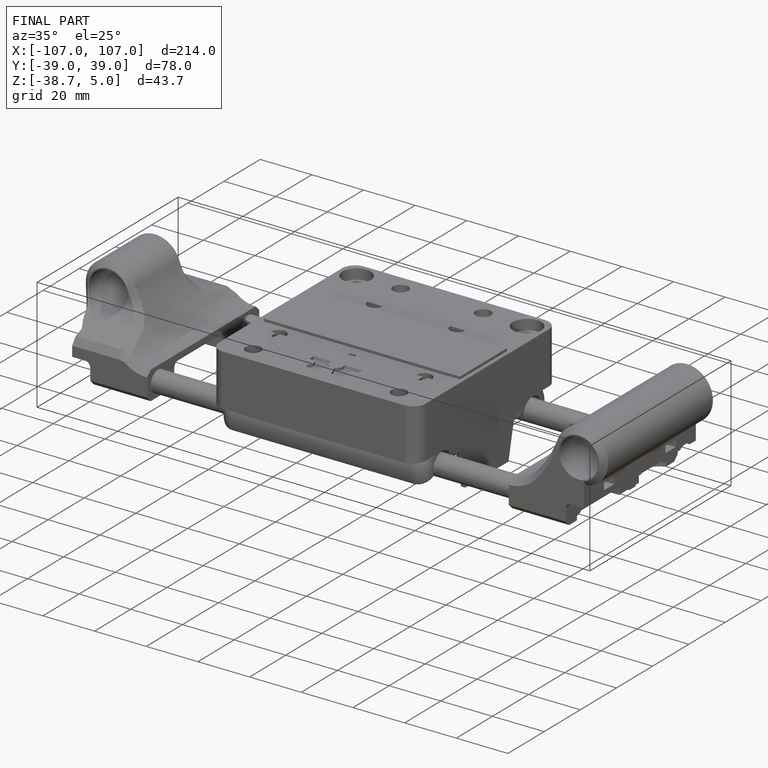
[diagram: finished part — iso view with bounding-box wireframe]
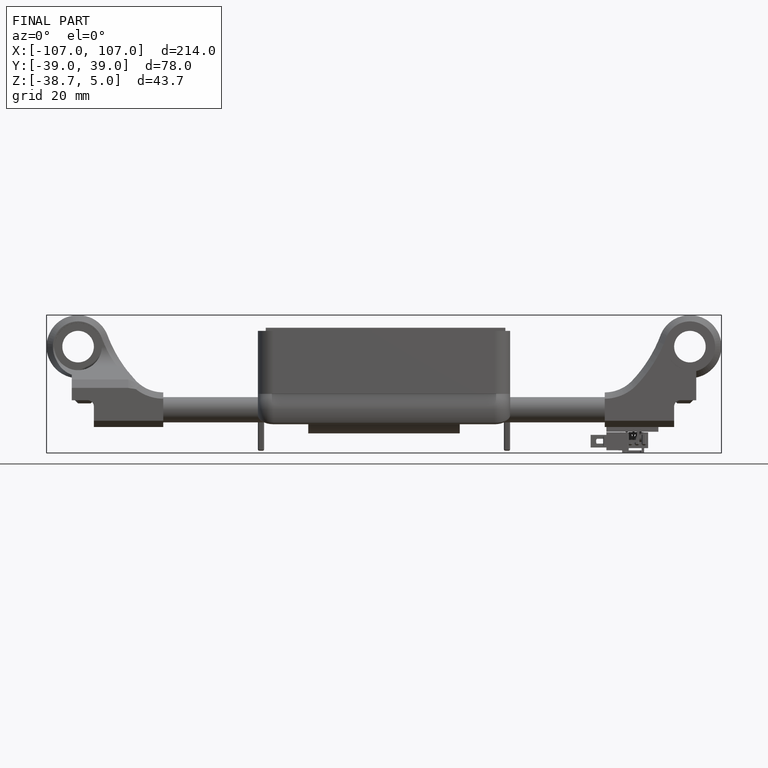
[diagram: finished part — front view with bounding-box wireframe]
